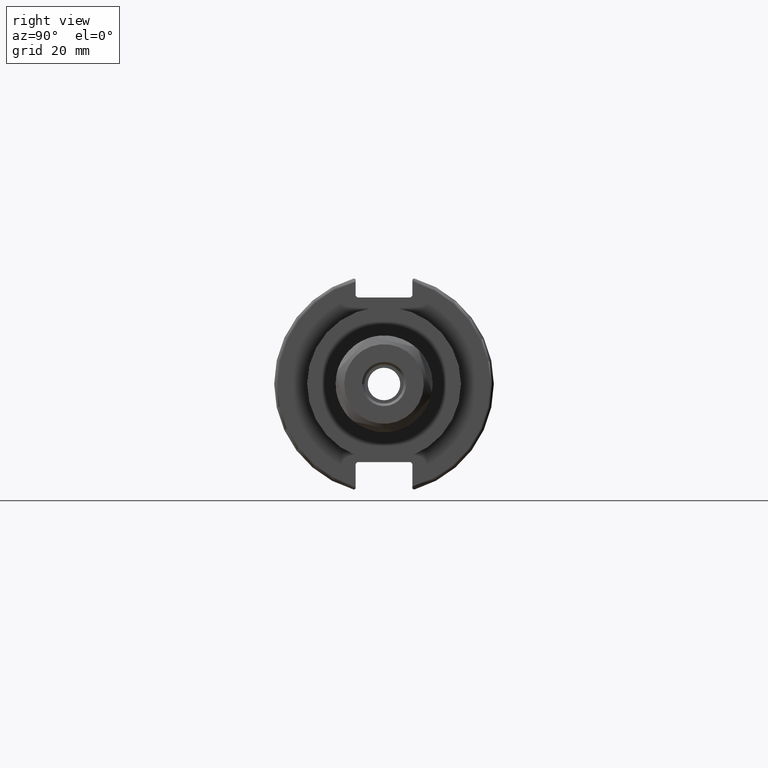
[diagram: clean part render]
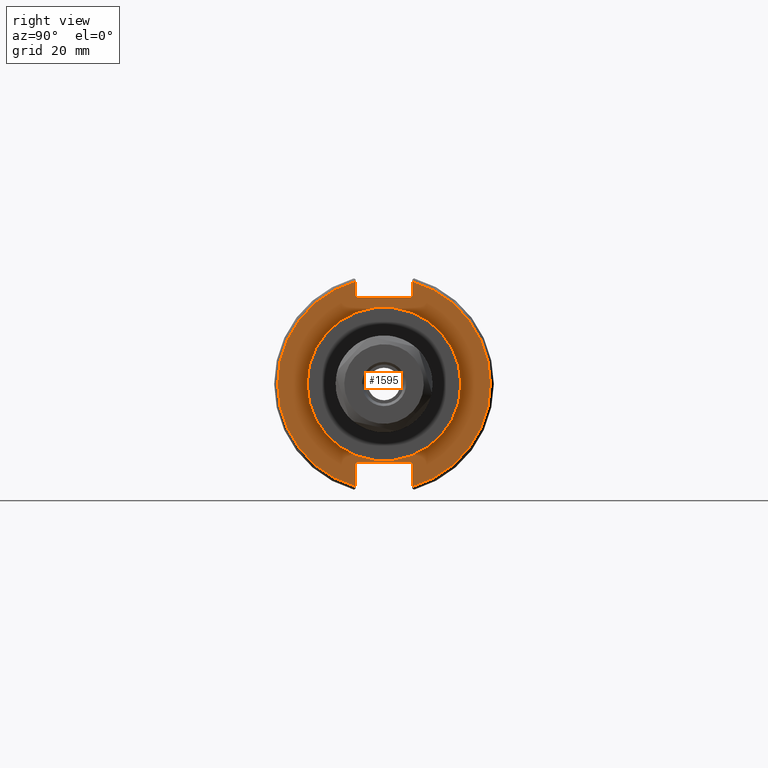
[diagram: same view with one face highlighted and labeled with its STEP entity id]
A machine part, right view. The second image highlights one B-rep face of the part: STEP entity #1595.
In plain terms, the highlighted planar face has unit normal (1, 0, 0).
Its self-contained STEP definition (entity closure, byte-faithful):
#123=FACE_BOUND('',#316,.T.);
#140=PLANE('',#1788);
#215=FACE_OUTER_BOUND('',#315,.T.);
#315=EDGE_LOOP('',(#1174,#1175,#1176,#1177,#1178,#1179,#1180,#1181,#1182,
#1183,#1184,#1185));
#316=EDGE_LOOP('',(#1186));
#423=LINE('',#2546,#532);
#429=LINE('',#2572,#538);
#430=LINE('',#2574,#539);
#431=LINE('',#2576,#540);
#432=LINE('',#2578,#541);
#433=LINE('',#2580,#542);
#434=LINE('',#2584,#543);
#435=LINE('',#2586,#544);
#436=LINE('',#2588,#545);
#437=LINE('',#2589,#546);
#532=VECTOR('',#2038,10.);
#538=VECTOR('',#2046,10.);
#539=VECTOR('',#2047,10.);
#540=VECTOR('',#2048,10.);
#541=VECTOR('',#2049,10.);
#542=VECTOR('',#2050,10.);
#543=VECTOR('',#2053,10.);
#544=VECTOR('',#2054,10.);
#545=VECTOR('',#2055,10.);
#546=VECTOR('',#2056,10.);
#628=CIRCLE('',#1761,22.225);
#641=CIRCLE('',#1784,30.75);
#643=CIRCLE('',#1789,30.75);
#707=VERTEX_POINT('',#2440);
#730=VERTEX_POINT('',#2501);
#731=VERTEX_POINT('',#2508);
#737=VERTEX_POINT('',#2545);
#744=VERTEX_POINT('',#2571);
#745=VERTEX_POINT('',#2573);
#746=VERTEX_POINT('',#2575);
#747=VERTEX_POINT('',#2577);
#748=VERTEX_POINT('',#2579);
#749=VERTEX_POINT('',#2581);
#750=VERTEX_POINT('',#2583);
#751=VERTEX_POINT('',#2585);
#752=VERTEX_POINT('',#2587);
#866=EDGE_CURVE('',#707,#707,#628,.T.);
#894=EDGE_CURVE('',#730,#731,#641,.T.);
#902=EDGE_CURVE('',#737,#731,#423,.T.);
#911=EDGE_CURVE('',#730,#744,#429,.T.);
#912=EDGE_CURVE('',#745,#744,#430,.T.);
#913=EDGE_CURVE('',#745,#746,#431,.T.);
#914=EDGE_CURVE('',#747,#746,#432,.T.);
#915=EDGE_CURVE('',#747,#748,#433,.T.);
#916=EDGE_CURVE('',#749,#748,#643,.T.);
#917=EDGE_CURVE('',#749,#750,#434,.T.);
#918=EDGE_CURVE('',#751,#750,#435,.T.);
#919=EDGE_CURVE('',#751,#752,#436,.T.);
#920=EDGE_CURVE('',#737,#752,#437,.T.);
#1174=ORIENTED_EDGE('',*,*,#894,.F.);
#1175=ORIENTED_EDGE('',*,*,#911,.T.);
#1176=ORIENTED_EDGE('',*,*,#912,.F.);
#1177=ORIENTED_EDGE('',*,*,#913,.T.);
#1178=ORIENTED_EDGE('',*,*,#914,.F.);
#1179=ORIENTED_EDGE('',*,*,#915,.T.);
#1180=ORIENTED_EDGE('',*,*,#916,.F.);
#1181=ORIENTED_EDGE('',*,*,#917,.T.);
#1182=ORIENTED_EDGE('',*,*,#918,.F.);
#1183=ORIENTED_EDGE('',*,*,#919,.T.);
#1184=ORIENTED_EDGE('',*,*,#920,.F.);
#1185=ORIENTED_EDGE('',*,*,#902,.T.);
#1186=ORIENTED_EDGE('',*,*,#866,.T.);
#1595=ADVANCED_FACE('',(#215,#123),#140,.T.);
#1761=AXIS2_PLACEMENT_3D('',#2442,#1968,#1969);
#1784=AXIS2_PLACEMENT_3D('',#2509,#2028,#2029);
#1788=AXIS2_PLACEMENT_3D('',#2570,#2044,#2045);
#1789=AXIS2_PLACEMENT_3D('',#2582,#2051,#2052);
#1968=DIRECTION('center_axis',(-1.,0.,0.));
#1969=DIRECTION('ref_axis',(0.,1.,0.));
#2028=DIRECTION('center_axis',(-1.,0.,0.));
#2029=DIRECTION('ref_axis',(0.,1.,-6.12323399573677E-17));
#2038=DIRECTION('',(0.,0.,-1.));
#2044=DIRECTION('center_axis',(1.,0.,0.));
#2045=DIRECTION('ref_axis',(0.,0.,-1.));
#2046=DIRECTION('',(0.,0.,-1.));
#2047=DIRECTION('',(0.,0.707106781186549,0.707106781186546));
#2048=DIRECTION('',(0.,-1.,0.));
#2049=DIRECTION('',(0.,0.70710678118655,-0.707106781186545));
#2050=DIRECTION('',(0.,0.,1.));
#2051=DIRECTION('center_axis',(-1.,0.,0.));
#2052=DIRECTION('ref_axis',(0.,-1.,1.60812264967664E-16));
#2053=DIRECTION('',(0.,0.,1.));
#2054=DIRECTION('',(0.,-0.707106781186549,-0.707106781186546));
#2055=DIRECTION('',(0.,1.,0.));
#2056=DIRECTION('',(0.,-0.707106781186549,0.707106781186546));
#2440=CARTESIAN_POINT('',(19.05,-22.225,-2.72177751110499E-15));
#2442=CARTESIAN_POINT('Origin',(19.05,0.,0.));
#2501=CARTESIAN_POINT('',(19.05,8.19,29.6392712461019));
#2508=CARTESIAN_POINT('',(19.05,8.19,-29.6392712461019));
#2509=CARTESIAN_POINT('Origin',(19.05,0.,0.));
#2545=CARTESIAN_POINT('',(19.05,8.19,-23.1));
#2546=CARTESIAN_POINT('',(19.05,8.19,-11.3));
#2570=CARTESIAN_POINT('Origin',(19.05,0.,0.));
#2571=CARTESIAN_POINT('',(19.05,8.19,25.5));
#2572=CARTESIAN_POINT('',(19.05,8.19,12.5));
#2573=CARTESIAN_POINT('',(19.05,7.69,25.));
#2574=CARTESIAN_POINT('',(19.05,-0.35750000000001,16.9525));
#2575=CARTESIAN_POINT('',(19.05,-7.69,25.));
#2576=CARTESIAN_POINT('',(19.05,0.,25.));
#2577=CARTESIAN_POINT('',(19.05,-8.19,25.5));
#2578=CARTESIAN_POINT('',(19.05,0.357500000000014,16.9525));
#2579=CARTESIAN_POINT('',(19.05,-8.19,29.6392712461019));
#2580=CARTESIAN_POINT('',(19.05,-8.19,12.5));
#2581=CARTESIAN_POINT('',(19.05,-8.19,-29.6392712461019));
#2582=CARTESIAN_POINT('Origin',(19.05,0.,0.));
#2583=CARTESIAN_POINT('',(19.05,-8.19,-23.1));
#2584=CARTESIAN_POINT('',(19.05,-8.19,-11.3));
#2585=CARTESIAN_POINT('',(19.05,-7.69,-22.6));
#2586=CARTESIAN_POINT('',(19.05,-0.242499999999991,-15.1525));
#2587=CARTESIAN_POINT('',(19.05,7.69,-22.6));
#2588=CARTESIAN_POINT('',(19.05,-2.77555756156289E-16,-22.6));
#2589=CARTESIAN_POINT('',(19.05,0.242499999999989,-15.1525));